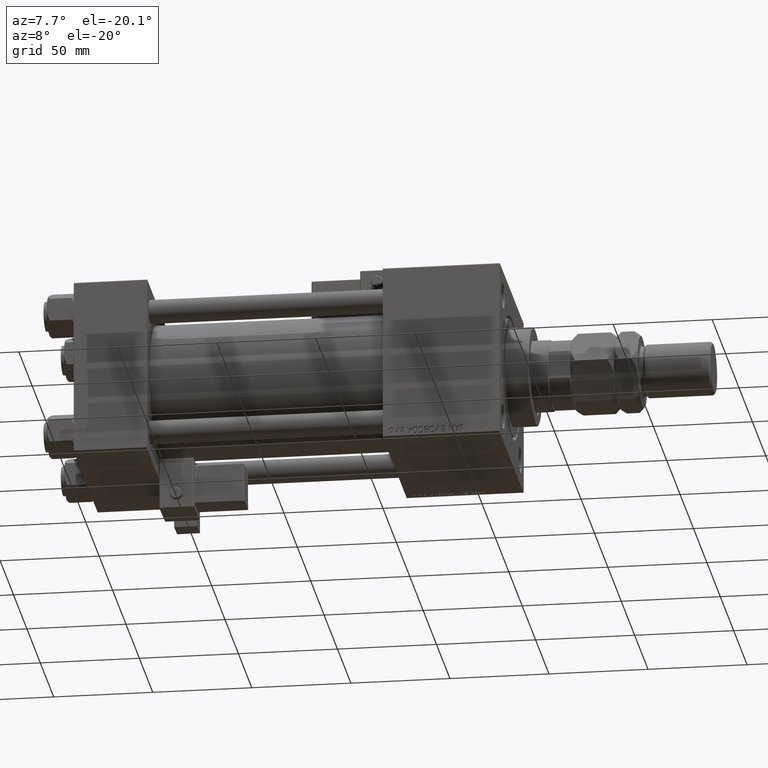
[diagram: clean part render]
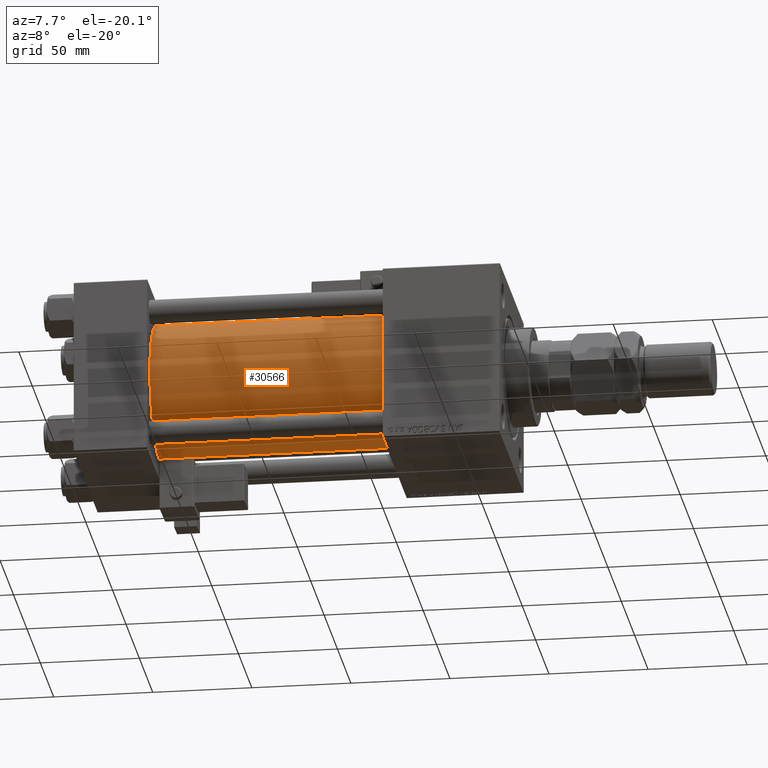
[diagram: same view with one face highlighted and labeled with its STEP entity id]
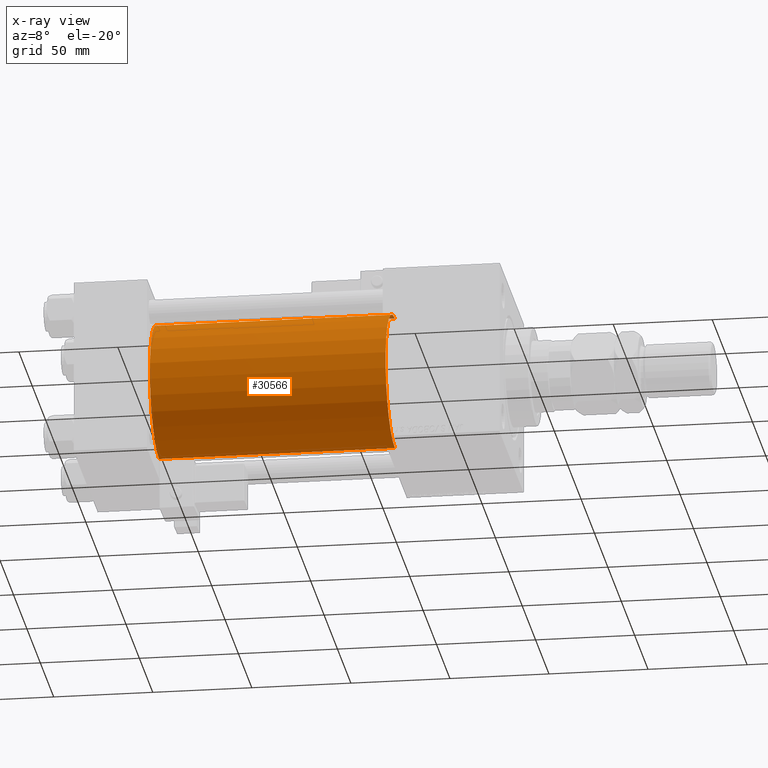
[diagram: x-ray of the same camera — body ghosted, the highlighted face saturated]
A machine part, auxiliary view. The second image highlights one B-rep face of the part: STEP entity #30566.
The next image is the same camera in x-ray: the body ghosted, the highlighted face saturated — about 0% of this face is hidden behind the body in this view.
In plain terms, the highlighted cylindrical surface (partial cylindrical patch) has radius 34.5 mm, axis along (-1, -0, -0).
Its self-contained STEP definition (entity closure, byte-faithful):
#1 = CIRCLE ( 'NONE', #33329, 34.50000000000000000 ) ;
#713 = CARTESIAN_POINT ( 'NONE',  ( 37.00000000000000711, -2.602085213965210642E-15, 34.50000000000000000 ) ) ;
#792 = CARTESIAN_POINT ( 'NONE',  ( 156.0000000000000000, 1.622946243093158675E-15, -34.50000000000000000 ) ) ;
#1312 = CARTESIAN_POINT ( 'NONE',  ( 156.0000000000000000, -2.602085213965210642E-15, 34.50000000000000000 ) ) ;
#3068 = VERTEX_POINT ( 'NONE', #35192 ) ;
#3377 = EDGE_LOOP ( 'NONE', ( #34285, #34385, #9428, #50608 ) ) ;
#4085 = LINE ( 'NONE', #792, #35890 ) ;
#9428 = ORIENTED_EDGE ( 'NONE', *, *, #36009, .T. ) ;
#9815 = DIRECTION ( 'NONE',  ( -1.000000000000000000, -0.000000000000000000, -0.000000000000000000 ) ) ;
#10271 = VERTEX_POINT ( 'NONE', #18287 ) ;
#10783 = DIRECTION ( 'NONE',  ( 0.000000000000000000, 0.000000000000000000, 1.000000000000000000 ) ) ;
#11077 = CARTESIAN_POINT ( 'NONE',  ( 156.0000000000000000, -2.602085213965210642E-15, 0.000000000000000000 ) ) ;
#12332 = FACE_OUTER_BOUND ( 'NONE', #3377, .T. ) ;
#12757 = CARTESIAN_POINT ( 'NONE',  ( 156.0000000000000000, 1.622946243093158675E-15, -34.50000000000000000 ) ) ;
#14921 = DIRECTION ( 'NONE',  ( 1.000000000000000000, 0.000000000000000000, 0.000000000000000000 ) ) ;
#15338 = VERTEX_POINT ( 'NONE', #713 ) ;
#16707 = DIRECTION ( 'NONE',  ( -1.000000000000000000, -0.000000000000000000, -0.000000000000000000 ) ) ;
#17846 = VERTEX_POINT ( 'NONE', #12757 ) ;
#18287 = CARTESIAN_POINT ( 'NONE',  ( 156.0000000000000000, -2.602085213965210642E-15, 34.50000000000000000 ) ) ;
#19026 = DIRECTION ( 'NONE',  ( 0.000000000000000000, 0.000000000000000000, -1.000000000000000000 ) ) ;
#22166 = AXIS2_PLACEMENT_3D ( 'NONE', #39734, #48202, #10783 ) ;
#29011 = CYLINDRICAL_SURFACE ( 'NONE', #35028, 34.50000000000000000 ) ;
#29043 = EDGE_CURVE ( 'NONE', #10271, #17846, #1, .T. ) ;
#30566 = ADVANCED_FACE ( 'NONE', ( #12332 ), #29011, .T. ) ;
#33099 = DIRECTION ( 'NONE',  ( -1.000000000000000000, -0.000000000000000000, -0.000000000000000000 ) ) ;
#33329 = AXIS2_PLACEMENT_3D ( 'NONE', #11077, #14921, #19026 ) ;
#34285 = ORIENTED_EDGE ( 'NONE', *, *, #49298, .F. ) ;
#34385 = ORIENTED_EDGE ( 'NONE', *, *, #29043, .F. ) ;
#35028 = AXIS2_PLACEMENT_3D ( 'NONE', #37729, #16707, #50016 ) ;
#35192 = CARTESIAN_POINT ( 'NONE',  ( 37.00000000000000711, 1.622946243093158675E-15, -34.50000000000000000 ) ) ;
#35223 = VECTOR ( 'NONE', #9815, 1000.000000000000000 ) ;
#35695 = EDGE_CURVE ( 'NONE', #15338, #3068, #47399, .T. ) ;
#35890 = VECTOR ( 'NONE', #33099, 1000.000000000000000 ) ;
#36009 = EDGE_CURVE ( 'NONE', #10271, #15338, #47231, .T. ) ;
#37729 = CARTESIAN_POINT ( 'NONE',  ( 156.0000000000000000, -2.602085213965210642E-15, 0.000000000000000000 ) ) ;
#39734 = CARTESIAN_POINT ( 'NONE',  ( 37.00000000000000711, -2.602085213965210642E-15, 0.000000000000000000 ) ) ;
#47231 = LINE ( 'NONE', #1312, #35223 ) ;
#47399 = CIRCLE ( 'NONE', #22166, 34.50000000000000000 ) ;
#48202 = DIRECTION ( 'NONE',  ( 1.000000000000000000, -0.000000000000000000, 0.000000000000000000 ) ) ;
#49298 = EDGE_CURVE ( 'NONE', #17846, #3068, #4085, .T. ) ;
#50016 = DIRECTION ( 'NONE',  ( 0.000000000000000000, 0.000000000000000000, 1.000000000000000000 ) ) ;
#50608 = ORIENTED_EDGE ( 'NONE', *, *, #35695, .T. ) ;